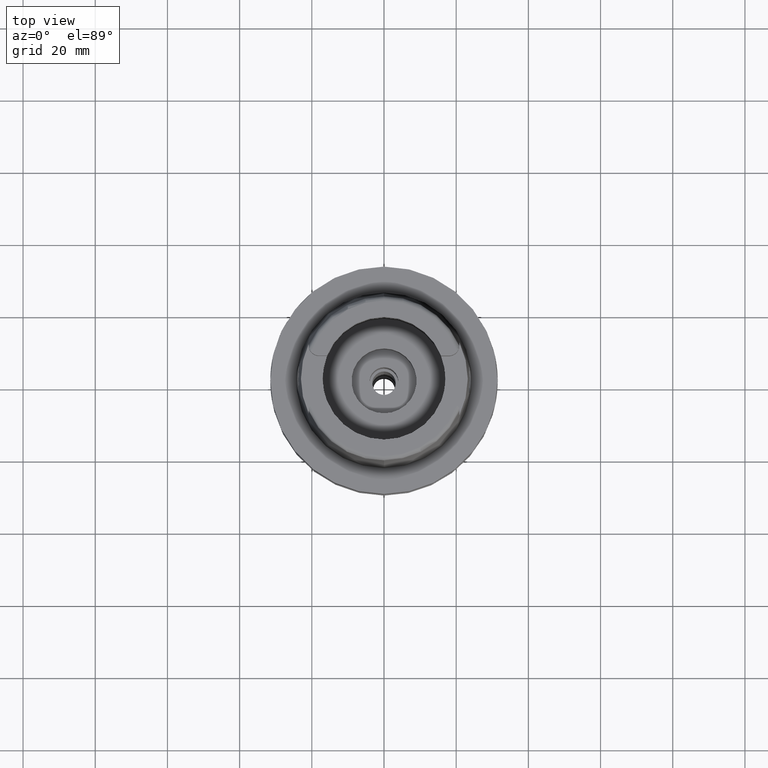
[diagram: clean part render]
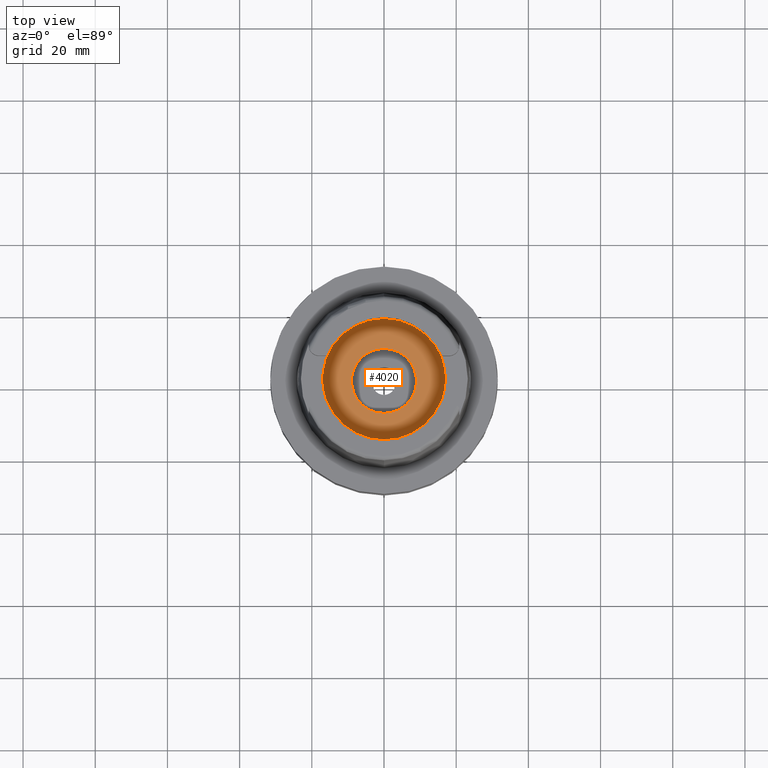
[diagram: same view with one face highlighted and labeled with its STEP entity id]
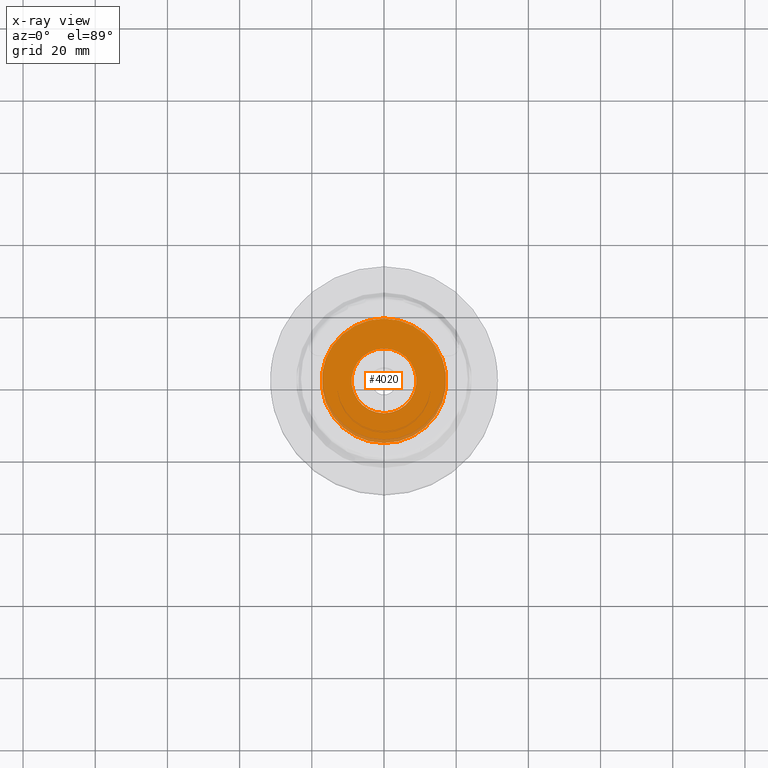
[diagram: x-ray of the same camera — body ghosted, the highlighted face saturated]
A machine part, top view. The second image highlights one B-rep face of the part: STEP entity #4020.
The next image is the same camera in x-ray: the body ghosted, the highlighted face saturated — about 6% of this face is hidden behind the body in this view.
In plain terms, the highlighted planar face has unit normal (0, 0, 1).
Its self-contained STEP definition (entity closure, byte-faithful):
#1957=CARTESIAN_POINT('',(0.E0,0.E0,-9.95E0));
#1958=DIRECTION('',(0.E0,0.E0,-1.E0));
#1959=DIRECTION('',(0.E0,-1.E0,0.E0));
#1960=AXIS2_PLACEMENT_3D('',#1957,#1958,#1959);
#1965=CARTESIAN_POINT('',(0.E0,0.E0,-9.95E0));
#1966=DIRECTION('',(0.E0,0.E0,-1.E0));
#1967=DIRECTION('',(0.E0,1.E0,0.E0));
#1968=AXIS2_PLACEMENT_3D('',#1965,#1966,#1967);
#1973=CARTESIAN_POINT('',(0.E0,0.E0,-9.95E0));
#1974=DIRECTION('',(0.E0,0.E0,1.E0));
#1975=DIRECTION('',(0.E0,-1.E0,0.E0));
#1976=AXIS2_PLACEMENT_3D('',#1973,#1974,#1975);
#1981=CARTESIAN_POINT('',(0.E0,0.E0,-9.95E0));
#1982=DIRECTION('',(0.E0,0.E0,1.E0));
#1983=DIRECTION('',(0.E0,1.E0,0.E0));
#1984=AXIS2_PLACEMENT_3D('',#1981,#1982,#1983);
#2400=CARTESIAN_POINT('',(0.E0,1.725E1,-9.95E0));
#2401=VERTEX_POINT('',#2400);
#2402=CARTESIAN_POINT('',(0.E0,-1.725E1,-9.95E0));
#2403=VERTEX_POINT('',#2402);
#2404=CARTESIAN_POINT('',(0.E0,-9.E0,-9.95E0));
#2405=CARTESIAN_POINT('',(0.E0,9.E0,-9.95E0));
#2406=VERTEX_POINT('',#2404);
#2407=VERTEX_POINT('',#2405);
#4005=CARTESIAN_POINT('',(0.E0,0.E0,-9.95E0));
#4006=DIRECTION('',(0.E0,0.E0,1.E0));
#4007=DIRECTION('',(0.E0,1.E0,0.E0));
#4008=AXIS2_PLACEMENT_3D('',#4005,#4006,#4007);
#4009=PLANE('',#4008);
#4011=ORIENTED_EDGE('',*,*,#4010,.T.);
#4013=ORIENTED_EDGE('',*,*,#4012,.T.);
#4014=EDGE_LOOP('',(#4011,#4013));
#4015=FACE_OUTER_BOUND('',#4014,.F.);
#4016=ORIENTED_EDGE('',*,*,#3998,.T.);
#4017=ORIENTED_EDGE('',*,*,#3987,.T.);
#4018=EDGE_LOOP('',(#4016,#4017));
#4019=FACE_BOUND('',#4018,.F.);
#1961=CIRCLE('',#1960,1.725E1);
#1969=CIRCLE('',#1968,1.725E1);
#1977=CIRCLE('',#1976,9.E0);
#1985=CIRCLE('',#1984,9.E0);
#3987=EDGE_CURVE('',#2407,#2406,#1985,.T.);
#3998=EDGE_CURVE('',#2406,#2407,#1977,.T.);
#4010=EDGE_CURVE('',#2403,#2401,#1961,.T.);
#4012=EDGE_CURVE('',#2401,#2403,#1969,.T.);
#4020=ADVANCED_FACE('',(#4015,#4019),#4009,.T.);